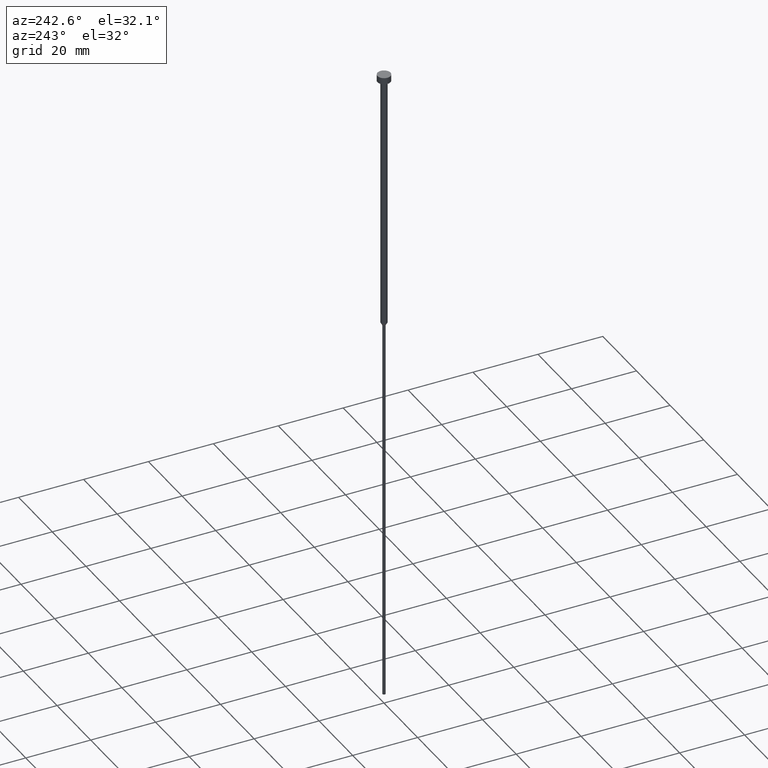
[diagram: clean part render]
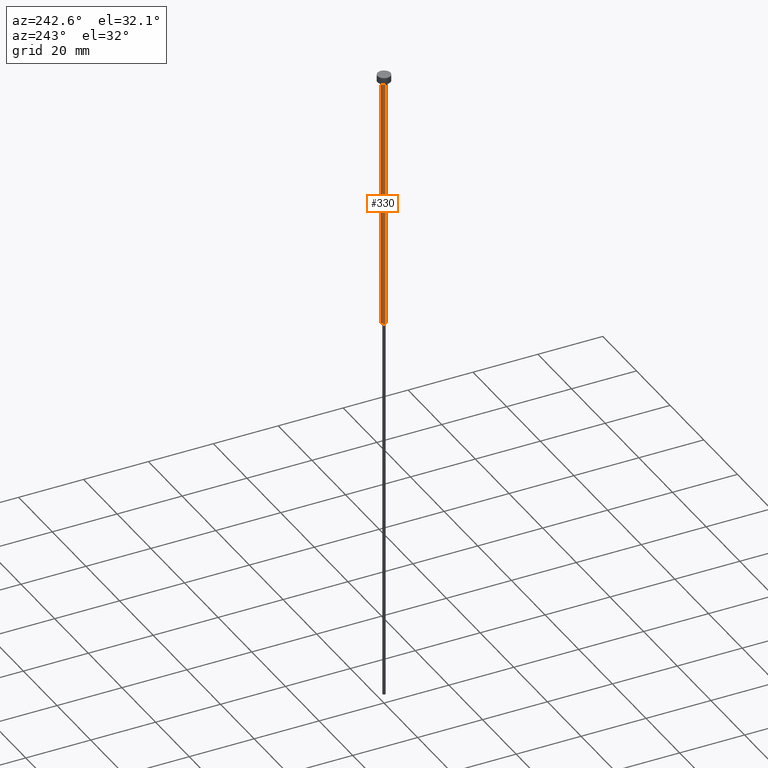
[diagram: same view with one face highlighted and labeled with its STEP entity id]
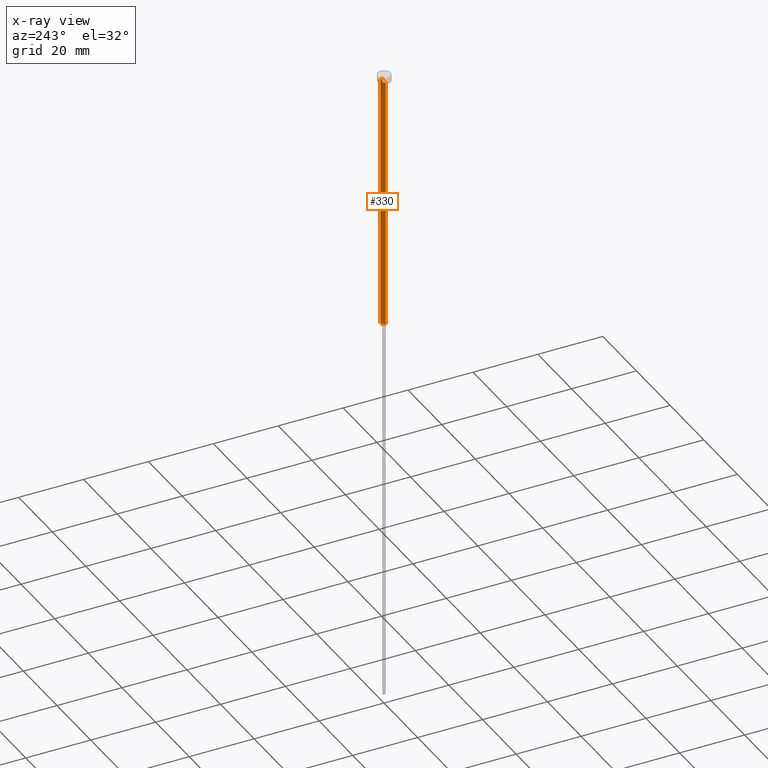
[diagram: x-ray of the same camera — body ghosted, the highlighted face saturated]
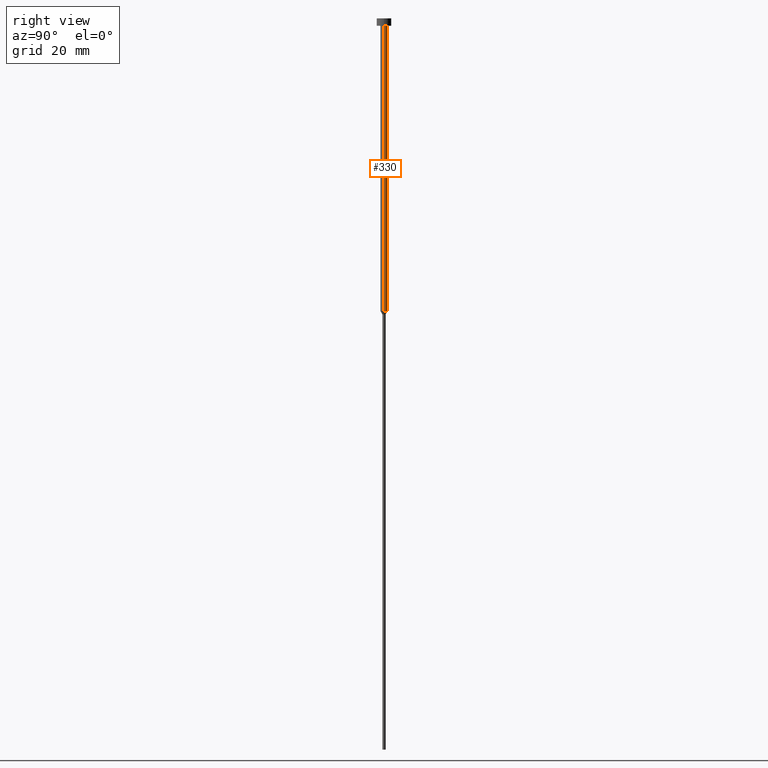
[diagram: same view with one face highlighted and labeled with its STEP entity id]
A machine part, auxiliary view. The second image highlights one B-rep face of the part: STEP entity #330.
The next image is the same camera in x-ray: the body ghosted, the highlighted face saturated — about 0% of this face is hidden behind the body in this view.
A second angle (right view) of the same face is appended — the face is thin or edge-on in the first view.
In plain terms, the highlighted cylindrical surface (edge-blend (fillet) strip) has radius 1 mm, axis along (-0, -0, 1).
Its self-contained STEP definition (entity closure, byte-faithful):
#2 = DIRECTION ( 'NONE',  ( -0.000000000000000000, -0.000000000000000000, 1.000000000000000000 ) ) ;
#3 = EDGE_LOOP ( 'NONE', ( #285, #65, #34, #59 ) ) ;
#11 = EDGE_CURVE ( 'NONE', #88, #261, #38, .T. ) ;
#12 = CARTESIAN_POINT ( 'NONE',  ( 0.000000000000000000, 0.000000000000000000, -2.000000000000000444 ) ) ;
#16 = DIRECTION ( 'NONE',  ( 1.000000000000000000, 0.000000000000000000, 0.000000000000000000 ) ) ;
#34 = ORIENTED_EDGE ( 'NONE', *, *, #280, .F. ) ;
#38 = LINE ( 'NONE', #115, #67 ) ;
#44 = EDGE_CURVE ( 'NONE', #61, #209, #252, .T. ) ;
#49 = CARTESIAN_POINT ( 'NONE',  ( 1.000000000000003109, 0.000000000000000000, -80.00000000000000000 ) ) ;
#58 = CIRCLE ( 'NONE', #182, 1.000000000000003553 ) ;
#59 = ORIENTED_EDGE ( 'NONE', *, *, #11, .F. ) ;
#61 = VERTEX_POINT ( 'NONE', #230 ) ;
#65 = ORIENTED_EDGE ( 'NONE', *, *, #44, .T. ) ;
#67 = VECTOR ( 'NONE', #2, 1000.000000000000000 ) ;
#73 = CARTESIAN_POINT ( 'NONE',  ( 0.000000000000000000, 0.000000000000000000, 0.000000000000000000 ) ) ;
#88 = VERTEX_POINT ( 'NONE', #49 ) ;
#91 = EDGE_CURVE ( 'NONE', #88, #61, #258, .T. ) ;
#113 = DIRECTION ( 'NONE',  ( 1.000000000000000000, 0.000000000000000000, 0.000000000000000000 ) ) ;
#115 = CARTESIAN_POINT ( 'NONE',  ( 1.000000000000003331, 0.000000000000000000, 0.000000000000000000 ) ) ;
#118 = DIRECTION ( 'NONE',  ( -0.000000000000000000, -0.000000000000000000, 1.000000000000000000 ) ) ;
#119 = VECTOR ( 'NONE', #198, 1000.000000000000000 ) ;
#121 = CARTESIAN_POINT ( 'NONE',  ( -1.000000000000003331, 1.224646799147357151E-16, 0.000000000000000000 ) ) ;
#139 = AXIS2_PLACEMENT_3D ( 'NONE', #73, #283, #113 ) ;
#149 = CARTESIAN_POINT ( 'NONE',  ( 0.000000000000000000, 0.000000000000000000, -80.00000000000000000 ) ) ;
#150 = CYLINDRICAL_SURFACE ( 'NONE', #139, 1.000000000000003331 ) ;
#182 = AXIS2_PLACEMENT_3D ( 'NONE', #12, #118, #341 ) ;
#183 = FACE_OUTER_BOUND ( 'NONE', #3, .T. ) ;
#184 = CARTESIAN_POINT ( 'NONE',  ( 1.000000000000003553, 0.000000000000000000, -2.000000000000000444 ) ) ;
#198 = DIRECTION ( 'NONE',  ( -0.000000000000000000, -0.000000000000000000, 1.000000000000000000 ) ) ;
#204 = DIRECTION ( 'NONE',  ( -0.000000000000000000, -0.000000000000000000, 1.000000000000000000 ) ) ;
#209 = VERTEX_POINT ( 'NONE', #239 ) ;
#230 = CARTESIAN_POINT ( 'NONE',  ( -1.000000000000003109, 1.224646799147356905E-16, -80.00000000000000000 ) ) ;
#239 = CARTESIAN_POINT ( 'NONE',  ( -1.000000000000003553, 1.224646799147357398E-16, -2.000000000000000444 ) ) ;
#249 = AXIS2_PLACEMENT_3D ( 'NONE', #149, #204, #16 ) ;
#252 = LINE ( 'NONE', #121, #119 ) ;
#258 = CIRCLE ( 'NONE', #249, 1.000000000000003109 ) ;
#261 = VERTEX_POINT ( 'NONE', #184 ) ;
#280 = EDGE_CURVE ( 'NONE', #261, #209, #58, .T. ) ;
#283 = DIRECTION ( 'NONE',  ( -0.000000000000000000, -0.000000000000000000, 1.000000000000000000 ) ) ;
#285 = ORIENTED_EDGE ( 'NONE', *, *, #91, .T. ) ;
#330 = ADVANCED_FACE ( 'NONE', ( #183 ), #150, .T. ) ;
#341 = DIRECTION ( 'NONE',  ( 1.000000000000000000, 0.000000000000000000, 0.000000000000000000 ) ) ;